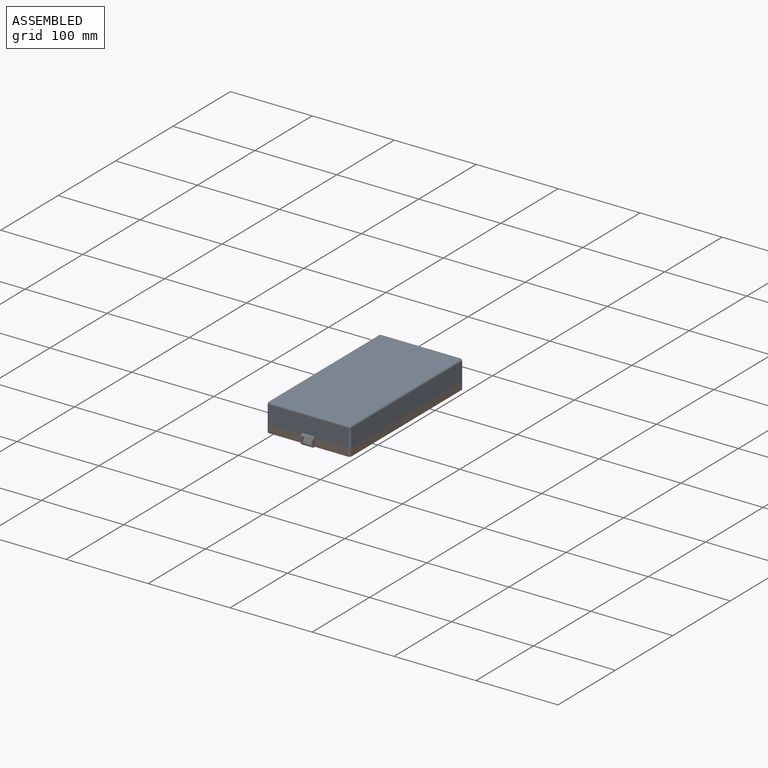
[diagram: assembled view]
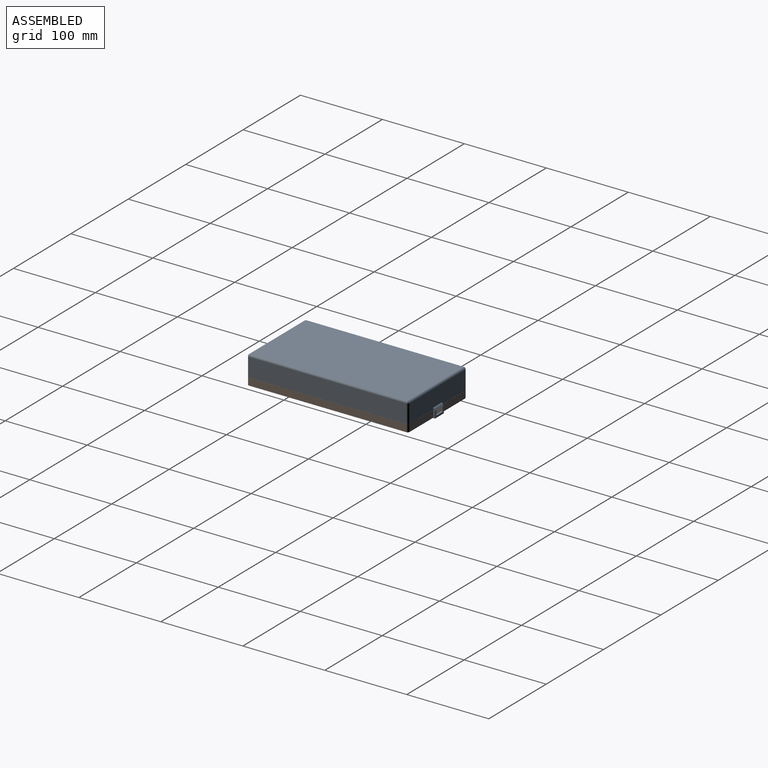
[diagram: assembled view, second angle]
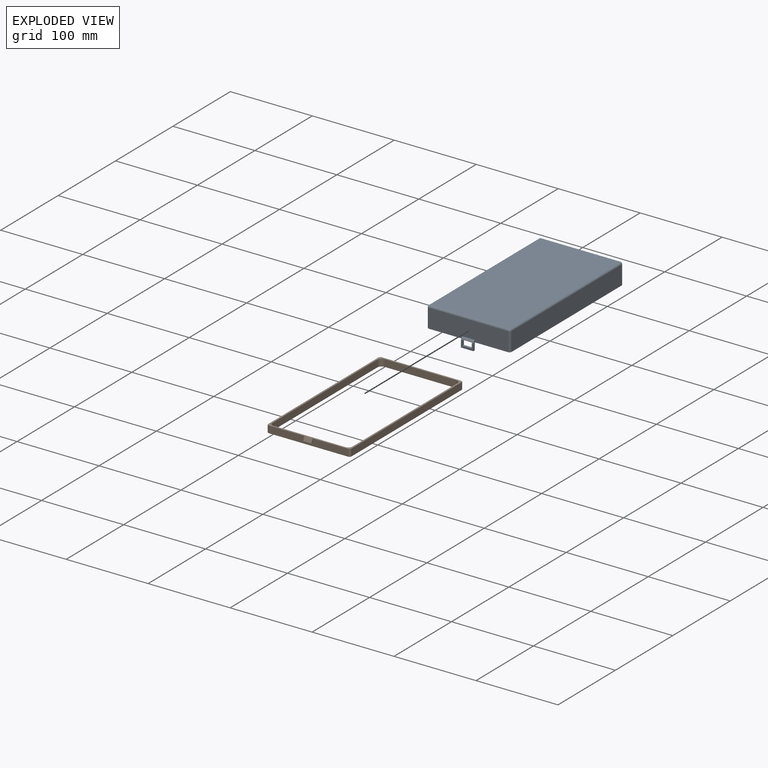
[diagram: exploded view]
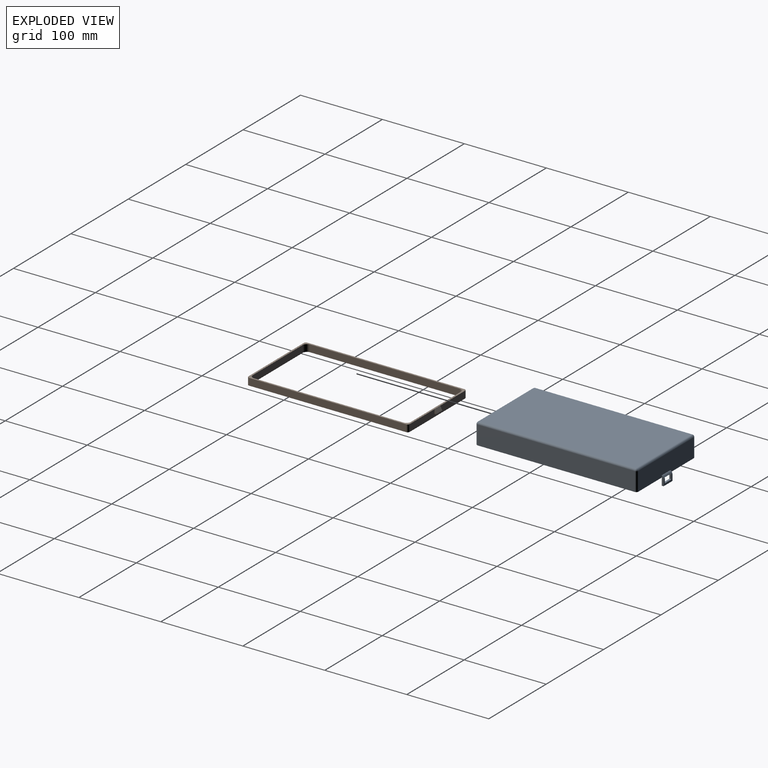
[diagram: exploded view, second angle]
ASSEMBLY  parts=2 mates=2
PART A: 49 faces, bbox 201.9x101.6x34.3 mm
  f0: plane 96.52x22.86mm, normal (-1,0,0), area 2167.7mm2, adj f4,f15,f16,f23,f40,f41,f42
  f1: plane 15.24x6.78mm, normal (1,0,0), area 51.9mm2, adj f3,f30,f31,f33,f34,f35,f37
  f2: plane 15.24x8.64mm, normal (-1,0,0), area 59mm2, adj f4,f30,f31,f33,f34,f35,f36
  f3: cylinder r=5.08mm len=15.24mm, axis (0,1,0), area 59.3mm2, adj f1,f4,f5,f30,f31,f34,f35
  f4: plane 201.23x101.6mm, normal (0,0,1), area 1540.3mm2, adj f0,f2,f3,f5,f6,f7,f9,f10
  f5: plane 96.52x22.86mm, normal (1,0,0), area 2167.7mm2, adj f3,f4,f14,f17,f28,f30,f31
  f6: plane 191.77x22.86mm, normal (0,1,0), area 4383.9mm2, adj f4,f14,f15,f27
  f7: plane 191.77x22.86mm, normal (0,-1,0), area 4383.9mm2, adj f4,f16,f17,f24
  f8: plane 191.77x96.52mm, normal (0,0,-1), area 18509.6mm2, adj f23,f24,f27,f28
  f9: plane 91.44x22.86mm, normal (-1,0,0), area 2090.3mm2, adj f4,f13,f19,f21
  f10: plane 186.69x22.86mm, normal (0,-1,0), area 4267.7mm2, adj f4,f13,f20,f21
  f11: plane 91.44x22.86mm, normal (1,0,0), area 2090.3mm2, adj f4,f13,f18,f20
  f12: plane 186.69x22.86mm, normal (0,1,0), area 4267.7mm2, adj f4,f13,f18,f19
  f13: plane 191.77x96.52mm, normal (0,0,1), area 18504.1mm2, adj f9,f10,f11,f12,f18,f19,f20,f21
  f14: cylinder r=2.54mm len=22.86mm, axis (0,0,1), area 91.2mm2, adj f4,f5,f6,f29
  f15: cylinder r=2.54mm len=22.86mm, axis (0,0,-1), area 91.2mm2, adj f0,f4,f6,f25
  f16: cylinder r=2.54mm len=22.86mm, axis (0,0,1), area 91.2mm2, adj f0,f4,f7,f22
  f17: cylinder r=2.54mm len=22.86mm, axis (0,0,-1), area 91.2mm2, adj f4,f5,f7,f26
  f18: cylinder r=2.54mm len=22.86mm, axis (0,0,-1), area 91.2mm2, adj f4,f11,f12,f13
  f19: cylinder r=2.54mm len=22.86mm, axis (0,0,1), area 91.2mm2, adj f4,f9,f12,f13
  f20: cylinder r=2.54mm len=22.86mm, axis (0,0,1), area 91.2mm2, adj f4,f10,f11,f13
  f21: cylinder r=2.54mm len=22.86mm, axis (0,0,-1), area 91.2mm2, adj f4,f9,f10,f13
  f22: sphere r=2.54mm, area 10.1mm2, adj f16,f23,f24
  f23: cylinder r=2.54mm len=96.52mm, axis (0,-1,0), area 385.1mm2, adj f0,f8,f22,f25
  f24: cylinder r=2.54mm len=191.77mm, axis (1,0,0), area 765.1mm2, adj f7,f8,f22,f26
  f25: sphere r=2.54mm, area 10.1mm2, adj f15,f23,f27
  f26: sphere r=2.54mm, area 10.1mm2, adj f17,f24,f28
  f27: cylinder r=2.54mm len=191.77mm, axis (-1,0,0), area 765.1mm2, adj f6,f8,f25,f29
  f28: cylinder r=2.54mm len=96.52mm, axis (0,1,0), area 385.1mm2, adj f5,f8,f26,f29
  f29: sphere r=2.54mm, area 10.1mm2, adj f14,f27,f28
  f30: plane 11.43x2.54mm, normal (0,-1,0), area 25.8mm2, adj f1,f2,f3,f5,f32,f36,f37
  f31: plane 11.43x2.54mm, normal (0,1,0), area 25.8mm2, adj f1,f2,f3,f5,f32,f36,f37
  f32: plane 15.24x2.03mm, normal (0,0,1), area 31mm2, adj f30,f31,f36,f37
  f33: plane 11.43x2.54mm, normal (0,0,-1), area 29mm2, adj f1,f2,f34,f35
  f34: plane 6.35x2.54mm, normal (0,1,0), area 15.9mm2, adj f1,f2,f3,f4,f33
  f35: plane 6.35x2.54mm, normal (0,-1,0), area 15.9mm2, adj f1,f2,f3,f4,f33
  f36: cylinder r=0.25mm len=15.24mm, axis (0,-1,0), area 6.1mm2, adj f2,f30,f31,f32
  f37: cylinder r=0.25mm len=15.24mm, axis (0,1,0), area 6.1mm2, adj f1,f30,f31,f32
  f38: plane 15.24x6.78mm, normal (-1,0,0), area 51.9mm2, adj f40,f41,f42,f44,f45,f46,f48
  f39: plane 15.24x8.64mm, normal (1,0,0), area 59mm2, adj f4,f41,f42,f44,f45,f46,f47
  f40: cylinder r=5.08mm len=15.24mm, axis (0,1,0), area 59.3mm2, adj f0,f4,f38,f41,f42,f45,f46
  f41: plane 11.43x2.54mm, normal (0,-1,0), area 25.8mm2, adj f0,f38,f39,f40,f43,f47,f48
  f42: plane 11.43x2.54mm, normal (0,1,0), area 25.8mm2, adj f0,f38,f39,f40,f43,f47,f48
  f43: plane 15.24x2.03mm, normal (0,0,1), area 31mm2, adj f41,f42,f47,f48
  f44: plane 11.43x2.54mm, normal (0,0,-1), area 29mm2, adj f38,f39,f45,f46
  f45: plane 6.35x2.54mm, normal (0,1,0), area 15.9mm2, adj f4,f38,f39,f40,f44
  f46: plane 6.35x2.54mm, normal (0,-1,0), area 15.9mm2, adj f4,f38,f39,f40,f44
  f47: cylinder r=0.25mm len=15.24mm, axis (0,-1,0), area 6.1mm2, adj f39,f41,f42,f43
  f48: cylinder r=0.25mm len=15.24mm, axis (0,1,0), area 6.1mm2, adj f38,f41,f42,f43
PART B: 34 faces, bbox 201.8x101.6x8.6 mm
  f0: plane 96.52x8.59mm, normal (1,0,0), area 777.5mm2, adj f7,f9,f14,f26,f27,f28,f30,f32
  f1: plane 191.77x8.59mm, normal (0,1,0), area 1646.6mm2, adj f6,f7,f14,f33
  f2: plane 182.63x8.59mm, normal (0,1,0), area 1568.1mm2, adj f11,f13,f14,f33
  f3: plane 87.38x8.59mm, normal (-1,0,0), area 750.2mm2, adj f12,f13,f14,f33
  f4: plane 182.63x8.59mm, normal (0,-1,0), area 1568.1mm2, adj f10,f12,f14,f33
  f5: plane 87.38x8.59mm, normal (1,0,0), area 750.2mm2, adj f10,f11,f14,f33
  f6: cylinder r=2.54mm len=8.59mm, axis (0,0,-1), area 34.3mm2, adj f1,f14,f16,f33
  f7: cylinder r=2.54mm len=8.59mm, axis (0,0,1), area 34.3mm2, adj f0,f1,f14,f33
  f8: cylinder r=2.54mm len=8.59mm, axis (0,0,1), area 34.3mm2, adj f14,f15,f16,f33
  f9: cylinder r=2.54mm len=8.59mm, axis (0,0,-1), area 34.3mm2, adj f0,f14,f15,f33
  f10: cylinder r=5.08mm len=8.59mm, axis (0,0,1), area 68.5mm2, adj f4,f5,f14,f33
  f11: cylinder r=5.08mm len=8.59mm, axis (0,0,-1), area 68.5mm2, adj f2,f5,f14,f33
  f12: cylinder r=5.08mm len=8.59mm, axis (0,0,-1), area 68.5mm2, adj f3,f4,f14,f33
  f13: cylinder r=5.08mm len=8.59mm, axis (0,0,1), area 68.5mm2, adj f2,f3,f14,f33
  f14: plane 196.85x101.6mm, normal (0,0,1), area 1213mm2, adj f0,f1,f2,f3,f4,f5,f6,f7
  f15: plane 191.77x8.59mm, normal (0,-1,0), area 1646.6mm2, adj f8,f9,f14,f33
  f16: plane 96.52x8.59mm, normal (-1,0,0), area 777.5mm2, adj f6,f8,f14,f18,f19,f20,f22,f24
  f17: plane 9.83x0.04mm, normal (1,0,0), area 0.3mm2, adj f14,f21,f22,f24
  f18: plane 4.51x2.24mm, normal (0,1,0), area 5.1mm2, adj f16,f19,f23,f24
  f19: plane 10.16x2.13mm, normal (0,0,-1), area 21.6mm2, adj f16,f18,f20,f23
  f20: plane 4.51x2.24mm, normal (0,-1,0), area 5.1mm2, adj f16,f19,f22,f23
  f21: plane 9.65x4.71mm, normal (-0.89,0,0.45), area 50.9mm2, adj f17,f22,f23,f24
  f22: cylinder r=0.25mm len=5.05mm, axis (0.45,0,0.89), area 2.1mm2, adj f16,f17,f20,f21,f23
  f23: cylinder r=0.25mm len=10.16mm, axis (0,1,0), area 5.2mm2, adj f18,f19,f20,f21,f22,f24
  f24: cylinder r=0.25mm len=5.05mm, axis (-0.45,0,-0.89), area 2.1mm2, adj f16,f17,f18,f21,f23
  f25: plane 9.83x0.04mm, normal (-1,0,0), area 0.3mm2, adj f14,f29,f30,f32
  f26: plane 4.51x2.24mm, normal (0,1,0), area 5.1mm2, adj f0,f27,f31,f32
  f27: plane 10.16x2.13mm, normal (0,0,-1), area 21.6mm2, adj f0,f26,f28,f31
  f28: plane 4.51x2.24mm, normal (0,-1,0), area 5.1mm2, adj f0,f27,f30,f31
  f29: plane 9.65x4.71mm, normal (0.89,0,0.45), area 50.9mm2, adj f25,f30,f31,f32
  f30: cylinder r=0.25mm len=5.05mm, axis (-0.45,0,0.89), area 2.1mm2, adj f0,f25,f28,f29,f31
  f31: cylinder r=0.25mm len=10.16mm, axis (0,1,0), area 5.2mm2, adj f26,f27,f28,f29,f30,f32
  f32: cylinder r=0.25mm len=5.05mm, axis (0.45,0,-0.89), area 2.1mm2, adj f0,f25,f26,f29,f31
  f33: plane 196.85x101.6mm, normal (0,0,-1), area 1213mm2, adj f0,f1,f2,f3,f4,f5,f6,f7
PLACE A rot(axis=(-0.71,-0.71,0),180deg) t=(-252.25,-147.65,209.38)mm
PLACE B rot(axis=(0,0,-1),90deg) t=(-252.25,-147.65,183.91)mm
MATE planar A.f0 <-> B.f0  axis (0,-1,0) through (-252.25,-246.07,195.59)mm
MATE planar A.f7 <-> B.f15  axis (-1,0,0) through (-303.05,-147.65,195.41)mm
